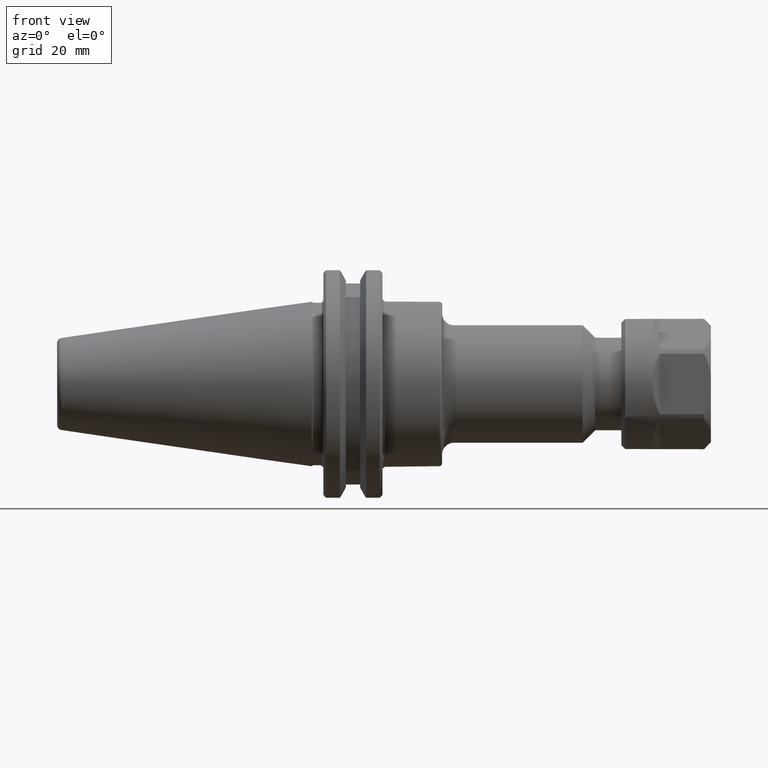
[diagram: clean part render]
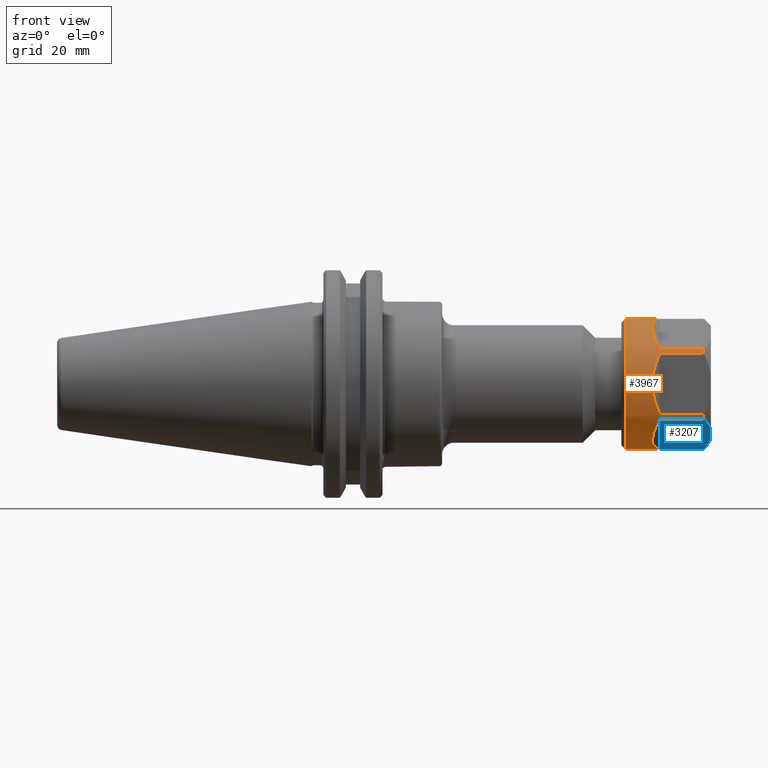
[diagram: same view with the hole feature highlighted: cylindrical wall and planar end face, labeled with their STEP entity ids]
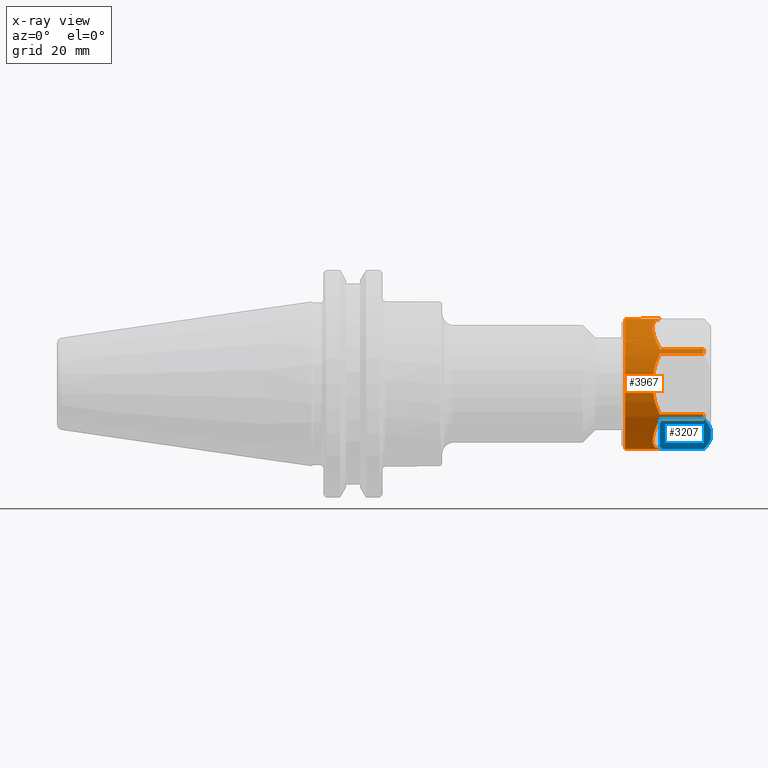
[diagram: x-ray of the same camera — body ghosted, the hole faces saturated]
A machine part, front view. The highlighted faces form one hole feature of diameter 35 mm: the cylindrical wall (entity #3967, orange) and its adjacent planar end face (entity #3207, blue) — they share a circular edge in the B-rep.
The next image is the same camera in x-ray (body ghosted, the hole faces saturated) — the bore reads through the body.
Wall:
#2981=CARTESIAN_POINT('',(13.67,17.485412960976781,0.714376360264837));
#2982=VERTEX_POINT('',#2981);
#2983=CARTESIAN_POINT('',(13.67,9.361374556340829,14.785623639735139));
#2984=VERTEX_POINT('',#2983);
#2985=CARTESIAN_POINT('',(-1.830000000000001,0.0,0.0));
#2986=DIRECTION('',(0.707106781186548,-0.612372435695795,-0.353553390593273));
#2987=DIRECTION('',(0.707106781186548,0.612372435695795,0.353553390593273));
#2988=AXIS2_PLACEMENT_3D('',#2985,#2986,#2987);
#2989=ELLIPSE('',#2988,24.748737341529164,17.500000000000004);
#2990=EDGE_CURVE('',#2982,#2984,#2989,.T.);
#3006=CARTESIAN_POINT('',(2.007106781186544,9.361374556340826,14.785623639735144));
#3007=VERTEX_POINT('',#3006);
#3008=CARTESIAN_POINT('',(13.67,9.361374556340834,14.785623639735135));
#3009=DIRECTION('',(-1.0,0.0,0.0));
#3010=VECTOR('',#3009,11.662893218813458);
#3011=LINE('',#3008,#3010);
#3012=EDGE_CURVE('',#2984,#3007,#3011,.T.);
#3015=CARTESIAN_POINT('',(2.007106781186544,17.485412960976781,0.714376360264832));
#3016=VERTEX_POINT('',#3015);
#3017=CARTESIAN_POINT('',(2.007106781186542,17.485412960976777,0.714376360264841));
#3018=DIRECTION('',(1.0,0.0,0.0));
#3019=VECTOR('',#3018,11.662893218813458);
#3020=LINE('',#3017,#3019);
#3021=EDGE_CURVE('',#3016,#2982,#3020,.T.);
#3097=CARTESIAN_POINT('',(13.67,9.36137455634081,-14.785623639735149));
#3098=VERTEX_POINT('',#3097);
#3099=CARTESIAN_POINT('',(13.67,17.485412960976777,-0.71437636026486));
#3100=VERTEX_POINT('',#3099);
#3101=CARTESIAN_POINT('',(-1.830000000000001,0.0,0.0));
#3102=DIRECTION('',(0.707106781186548,-0.612372435695794,0.353553390593274));
#3103=DIRECTION('',(0.707106781186547,0.612372435695794,-0.353553390593274));
#3104=AXIS2_PLACEMENT_3D('',#3101,#3102,#3103);
#3105=ELLIPSE('',#3104,24.748737341529161,17.500000000000004);
#3106=EDGE_CURVE('',#3098,#3100,#3105,.T.);
#3122=CARTESIAN_POINT('',(2.007106781186544,17.485412960976781,-0.714376360264856));
#3123=VERTEX_POINT('',#3122);
#3124=CARTESIAN_POINT('',(13.67,17.485412960976777,-0.714376360264857));
#3125=DIRECTION('',(-1.0,0.0,0.0));
#3126=VECTOR('',#3125,11.662893218813458);
#3127=LINE('',#3124,#3126);
#3128=EDGE_CURVE('',#3100,#3123,#3127,.T.);
#3131=CARTESIAN_POINT('',(2.007106781186544,9.361374556340806,-14.785623639735157));
#3132=VERTEX_POINT('',#3131);
#3133=CARTESIAN_POINT('',(2.007106781186542,9.361374556340806,-14.785623639735153));
#3134=DIRECTION('',(1.0,0.0,0.0));
#3135=VECTOR('',#3134,11.662893218813458);
#3136=LINE('',#3133,#3135);
#3137=EDGE_CURVE('',#3132,#3098,#3136,.T.);
#3213=CARTESIAN_POINT('',(13.67,-8.124038404635968,-15.499999999999998));
#3214=VERTEX_POINT('',#3213);
#3215=CARTESIAN_POINT('',(13.67,8.124038404635961,-15.5));
#3216=VERTEX_POINT('',#3215);
#3217=CARTESIAN_POINT('',(-1.830000000000001,0.0,0.0));
#3218=DIRECTION('',(0.707106781186547,5.551115E-017,0.707106781186548));
#3219=DIRECTION('',(-0.707106781186548,0.0,0.707106781186547));
#3220=AXIS2_PLACEMENT_3D('',#3217,#3218,#3219);
#3221=ELLIPSE('',#3220,24.748737341529164,17.5);
#3222=EDGE_CURVE('',#3214,#3216,#3221,.T.);
#3238=CARTESIAN_POINT('',(2.007106781186544,8.124038404635968,-15.5));
#3239=VERTEX_POINT('',#3238);
#3240=CARTESIAN_POINT('',(13.67,8.124038404635961,-15.5));
#3241=DIRECTION('',(-1.0,0.0,0.0));
#3242=VECTOR('',#3241,11.662893218813458);
#3243=LINE('',#3240,#3242);
#3244=EDGE_CURVE('',#3216,#3239,#3243,.T.);
#3247=CARTESIAN_POINT('',(2.007106781186544,-8.124038404635973,-15.499999999999998));
#3248=VERTEX_POINT('',#3247);
#3249=CARTESIAN_POINT('',(2.007106781186542,-8.124038404635966,-15.499999999999996));
#3250=DIRECTION('',(1.0,0.0,0.0));
#3251=VECTOR('',#3250,11.662893218813458);
#3252=LINE('',#3249,#3251);
#3253=EDGE_CURVE('',#3248,#3214,#3252,.T.);
#3329=CARTESIAN_POINT('',(13.67,-17.485412960976781,-0.714376360264848));
#3330=VERTEX_POINT('',#3329);
#3331=CARTESIAN_POINT('',(13.67,-9.36137455634082,-14.785623639735144));
#3332=VERTEX_POINT('',#3331);
#3333=CARTESIAN_POINT('',(-1.830000000000001,0.0,0.0));
#3334=DIRECTION('',(0.707106781186548,0.612372435695795,0.353553390593274));
#3335=DIRECTION('',(-0.707106781186548,0.612372435695795,0.353553390593274));
#3336=AXIS2_PLACEMENT_3D('',#3333,#3334,#3335);
#3337=ELLIPSE('',#3336,24.748737341529168,17.5);
#3338=EDGE_CURVE('',#3330,#3332,#3337,.T.);
#3354=CARTESIAN_POINT('',(2.007106781186544,-9.361374556340818,-14.785623639735148));
#3355=VERTEX_POINT('',#3354);
#3356=CARTESIAN_POINT('',(13.67,-9.361374556340824,-14.785623639735139));
#3357=DIRECTION('',(-1.0,0.0,0.0));
#3358=VECTOR('',#3357,11.662893218813458);
#3359=LINE('',#3356,#3358);
#3360=EDGE_CURVE('',#3332,#3355,#3359,.T.);
#3363=CARTESIAN_POINT('',(2.007106781186544,-17.485412960976781,-0.714376360264843));
#3364=VERTEX_POINT('',#3363);
#3365=CARTESIAN_POINT('',(2.007106781186542,-17.485412960976777,-0.714376360264852));
#3366=DIRECTION('',(1.0,0.0,0.0));
#3367=VECTOR('',#3366,11.662893218813458);
#3368=LINE('',#3365,#3367);
#3369=EDGE_CURVE('',#3364,#3330,#3368,.T.);
#3445=CARTESIAN_POINT('',(13.67,-9.361374556340813,14.785623639735148));
#3446=VERTEX_POINT('',#3445);
#3447=CARTESIAN_POINT('',(13.67,-17.485412960976781,0.714376360264855));
#3448=VERTEX_POINT('',#3447);
#3449=CARTESIAN_POINT('',(-1.830000000000001,0.0,0.0));
#3450=DIRECTION('',(0.707106781186547,0.612372435695794,-0.353553390593274));
#3451=DIRECTION('',(-0.707106781186547,0.612372435695794,-0.353553390593274));
#3452=AXIS2_PLACEMENT_3D('',#3449,#3450,#3451);
#3453=ELLIPSE('',#3452,24.748737341529161,17.5);
#3454=EDGE_CURVE('',#3446,#3448,#3453,.T.);
#3470=CARTESIAN_POINT('',(2.007106781186544,-17.485412960976781,0.71437636026485));
#3471=VERTEX_POINT('',#3470);
#3472=CARTESIAN_POINT('',(13.67,-17.485412960976781,0.714376360264853));
#3473=DIRECTION('',(-1.0,0.0,0.0));
#3474=VECTOR('',#3473,11.662893218813458);
#3475=LINE('',#3472,#3474);
#3476=EDGE_CURVE('',#3448,#3471,#3475,.T.);
#3479=CARTESIAN_POINT('',(2.007106781186544,-9.361374556340811,14.785623639735153));
#3480=VERTEX_POINT('',#3479);
#3481=CARTESIAN_POINT('',(2.007106781186542,-9.361374556340813,14.785623639735146));
#3482=DIRECTION('',(1.0,0.0,0.0));
#3483=VECTOR('',#3482,11.662893218813458);
#3484=LINE('',#3481,#3483);
#3485=EDGE_CURVE('',#3480,#3446,#3484,.T.);
#3742=CARTESIAN_POINT('',(2.007106781186544,-8.12403840463597,15.499999999999998));
#3743=VERTEX_POINT('',#3742);
#3744=CARTESIAN_POINT('',(2.007106781186544,0.0,0.0));
#3745=DIRECTION('',(1.0,0.0,0.0));
#3746=DIRECTION('',(0.0,1.0,0.0));
#3747=AXIS2_PLACEMENT_3D('',#3744,#3745,#3746);
#3748=CIRCLE('',#3747,17.500000000000004);
#3749=EDGE_CURVE('',#3743,#3480,#3748,.T.);
#3774=CARTESIAN_POINT('',(2.007106781186544,0.0,0.0));
#3775=DIRECTION('',(1.0,0.0,0.0));
#3776=DIRECTION('',(0.0,1.0,0.0));
#3777=AXIS2_PLACEMENT_3D('',#3774,#3775,#3776);
#3778=CIRCLE('',#3777,17.500000000000004);
#3779=EDGE_CURVE('',#3471,#3364,#3778,.T.);
#3792=CARTESIAN_POINT('',(2.007106781186544,0.0,0.0));
#3793=DIRECTION('',(1.0,0.0,0.0));
#3794=DIRECTION('',(0.0,1.0,0.0));
#3795=AXIS2_PLACEMENT_3D('',#3792,#3793,#3794);
#3796=CIRCLE('',#3795,17.500000000000004);
#3797=EDGE_CURVE('',#3355,#3248,#3796,.T.);
#3810=CARTESIAN_POINT('',(2.007106781186544,0.0,0.0));
#3811=DIRECTION('',(1.0,0.0,0.0));
#3812=DIRECTION('',(0.0,1.0,0.0));
#3813=AXIS2_PLACEMENT_3D('',#3810,#3811,#3812);
#3814=CIRCLE('',#3813,17.500000000000004);
#3815=EDGE_CURVE('',#3239,#3132,#3814,.T.);
#3828=CARTESIAN_POINT('',(2.007106781186544,0.0,0.0));
#3829=DIRECTION('',(1.0,0.0,0.0));
#3830=DIRECTION('',(0.0,1.0,0.0));
#3831=AXIS2_PLACEMENT_3D('',#3828,#3829,#3830);
#3832=CIRCLE('',#3831,17.500000000000004);
#3833=EDGE_CURVE('',#3123,#3016,#3832,.T.);
#3845=CARTESIAN_POINT('',(13.67,8.124038404635964,15.499999999999998));
#3846=VERTEX_POINT('',#3845);
#3847=CARTESIAN_POINT('',(13.67,-8.124038404635964,15.499999999999998));
#3848=VERTEX_POINT('',#3847);
#3849=CARTESIAN_POINT('',(-1.830000000000001,0.0,0.0));
#3850=DIRECTION('',(0.707106781186548,0.0,-0.707106781186547));
#3851=DIRECTION('',(0.707106781186547,0.0,0.707106781186548));
#3852=AXIS2_PLACEMENT_3D('',#3849,#3850,#3851);
#3853=ELLIPSE('',#3852,24.748737341529161,17.5);
#3854=EDGE_CURVE('',#3846,#3848,#3853,.T.);
#3870=CARTESIAN_POINT('',(13.67,-8.124038404635964,15.499999999999998));
#3871=DIRECTION('',(-1.0,0.0,0.0));
#3872=VECTOR('',#3871,11.662893218813458);
#3873=LINE('',#3870,#3872);
#3874=EDGE_CURVE('',#3848,#3743,#3873,.T.);
#3877=CARTESIAN_POINT('',(2.007106781186544,8.12403840463597,15.499999999999998));
#3878=VERTEX_POINT('',#3877);
#3879=CARTESIAN_POINT('',(2.007106781186542,8.124038404635964,15.499999999999998));
#3880=DIRECTION('',(1.0,0.0,0.0));
#3881=VECTOR('',#3880,11.662893218813458);
#3882=LINE('',#3879,#3881);
#3883=EDGE_CURVE('',#3878,#3846,#3882,.T.);
#3919=CARTESIAN_POINT('',(12.503553390593273,0.0,0.0));
#3920=DIRECTION('',(1.0,0.0,0.0));
#3921=DIRECTION('',(0.0,1.0,0.0));
#3922=AXIS2_PLACEMENT_3D('',#3919,#3920,#3921);
#3923=CYLINDRICAL_SURFACE('',#3922,17.5);
#3924=ORIENTED_EDGE('',*,*,#3012,.T.);
#3925=CARTESIAN_POINT('',(2.007106781186544,0.0,0.0));
#3926=DIRECTION('',(1.0,0.0,0.0));
#3927=DIRECTION('',(0.0,1.0,0.0));
#3928=AXIS2_PLACEMENT_3D('',#3925,#3926,#3927);
#3929=CIRCLE('',#3928,17.500000000000004);
#3930=EDGE_CURVE('',#3007,#3878,#3929,.T.);
#3931=ORIENTED_EDGE('',*,*,#3930,.T.);
#3932=ORIENTED_EDGE('',*,*,#3883,.T.);
#3933=ORIENTED_EDGE('',*,*,#3854,.T.);
#3934=ORIENTED_EDGE('',*,*,#3874,.T.);
#3935=ORIENTED_EDGE('',*,*,#3749,.T.);
#3936=ORIENTED_EDGE('',*,*,#3485,.T.);
#3937=ORIENTED_EDGE('',*,*,#3454,.T.);
#3938=ORIENTED_EDGE('',*,*,#3476,.T.);
#3939=ORIENTED_EDGE('',*,*,#3779,.T.);
#3940=ORIENTED_EDGE('',*,*,#3369,.T.);
#3941=ORIENTED_EDGE('',*,*,#3338,.T.);
#3942=ORIENTED_EDGE('',*,*,#3360,.T.);
#3943=ORIENTED_EDGE('',*,*,#3797,.T.);
#3944=ORIENTED_EDGE('',*,*,#3253,.T.);
#3945=ORIENTED_EDGE('',*,*,#3222,.T.);
#3946=ORIENTED_EDGE('',*,*,#3244,.T.);
#3947=ORIENTED_EDGE('',*,*,#3815,.T.);
#3948=ORIENTED_EDGE('',*,*,#3137,.T.);
#3949=ORIENTED_EDGE('',*,*,#3106,.T.);
#3950=ORIENTED_EDGE('',*,*,#3128,.T.);
#3951=ORIENTED_EDGE('',*,*,#3833,.T.);
#3952=ORIENTED_EDGE('',*,*,#3021,.T.);
#3953=ORIENTED_EDGE('',*,*,#2990,.T.);
#3954=EDGE_LOOP('',(#3924,#3931,#3932,#3933,#3934,#3935,#3936,#3937,#3938,#3939,#3940,#3941,#3942,#3943,#3944,#3945,#3946,#3947,#3948,#3949,#3950,#3951,#3952,#3953));
#3955=FACE_OUTER_BOUND('',#3954,.T.);
#3956=CARTESIAN_POINT('',(23.000000000000004,17.5,0.0));
#3957=VERTEX_POINT('',#3956);
#3958=CARTESIAN_POINT('',(23.000000000000004,0.0,0.0));
#3959=DIRECTION('',(1.0,0.0,0.0));
#3960=DIRECTION('',(0.0,1.0,0.0));
#3961=AXIS2_PLACEMENT_3D('',#3958,#3959,#3960);
#3962=CIRCLE('',#3961,17.5);
#3963=EDGE_CURVE('',#3957,#3957,#3962,.T.);
#3964=ORIENTED_EDGE('',*,*,#3963,.F.);
#3965=EDGE_LOOP('',(#3964));
#3966=FACE_BOUND('',#3965,.T.);
#3967=ADVANCED_FACE('',(#3955,#3966),#3923,.T.);
End face:
#3097=CARTESIAN_POINT('',(13.67,9.36137455634081,-14.785623639735149));
#3098=VERTEX_POINT('',#3097);
#3099=CARTESIAN_POINT('',(13.67,17.485412960976777,-0.71437636026486));
#3100=VERTEX_POINT('',#3099);
#3108=CARTESIAN_POINT('',(13.67,9.36137455634081,-14.785623639735151));
#3109=DIRECTION('',(0.0,0.5,0.866025403784438));
#3110=VECTOR('',#3109,16.248076809271929);
#3111=LINE('',#3108,#3110);
#3112=EDGE_CURVE('',#3098,#3100,#3111,.T.);
#3117=CARTESIAN_POINT('',(0.0,13.423393758658795,-7.750000000000007));
#3118=DIRECTION('',(0.0,-0.866025403784438,0.5));
#3119=DIRECTION('',(-1.0,0.0,0.0));
#3120=AXIS2_PLACEMENT_3D('',#3117,#3118,#3119);
#3121=PLANE('',#3120);
#3122=CARTESIAN_POINT('',(2.007106781186544,17.485412960976781,-0.714376360264856));
#3123=VERTEX_POINT('',#3122);
#3124=CARTESIAN_POINT('',(13.67,17.485412960976777,-0.714376360264857));
#3125=DIRECTION('',(-1.0,0.0,0.0));
#3126=VECTOR('',#3125,11.662893218813458);
#3127=LINE('',#3124,#3126);
#3128=EDGE_CURVE('',#3100,#3123,#3127,.T.);
#3129=ORIENTED_EDGE('',*,*,#3128,.F.);
#3130=ORIENTED_EDGE('',*,*,#3112,.F.);
#3131=CARTESIAN_POINT('',(2.007106781186544,9.361374556340806,-14.785623639735157));
#3132=VERTEX_POINT('',#3131);
#3133=CARTESIAN_POINT('',(2.007106781186542,9.361374556340806,-14.785623639735153));
#3134=DIRECTION('',(1.0,0.0,0.0));
#3135=VECTOR('',#3134,11.662893218813458);
#3136=LINE('',#3133,#3135);
#3137=EDGE_CURVE('',#3132,#3098,#3136,.T.);
#3138=ORIENTED_EDGE('',*,*,#3137,.F.);
#3139=CARTESIAN_POINT('',(1.65355339059327,9.521605217484009,-14.508095993704778));
#3140=VERTEX_POINT('',#3139);
#3141=CARTESIAN_POINT('',(1.65355339059327,9.521605217484009,-14.508095993704778));
#3142=CARTESIAN_POINT('',(1.671191505765734,9.501993443926528,-14.54206458193287));
#3143=CARTESIAN_POINT('',(1.690809506569942,9.483299748717721,-14.574443011815728));
#3144=CARTESIAN_POINT('',(1.749970785829544,9.435683946194725,-14.656916001028719));
#3145=CARTESIAN_POINT('',(1.805686069970949,9.402373173896972,-14.714611951087784));
#3146=CARTESIAN_POINT('',(1.887815344434457,9.376415389924089,-14.759572151780716));
#3147=CARTESIAN_POINT('',(1.914681847284033,9.370031443097224,-14.770629472037665));
#3148=CARTESIAN_POINT('',(1.959357004343837,9.363352654234962,-14.782197473680128));
#3149=CARTESIAN_POINT('',(1.985265833157077,9.361374556340811,-14.785623639735148));
#3150=CARTESIAN_POINT('',(2.007106781186544,9.361374556340811,-14.785623639735148));
#3151=B_SPLINE_CURVE_WITH_KNOTS('',3,(#3141,#3142,#3143,#3144,#3145,#3146,#3147,#3148,#3149,#3150),.UNSPECIFIED.,.F.,.U.,(4,2,2,2,4),(-0.047622419496248,-0.035700868469014,-0.013988799401258,-0.00655228440884,0.0),.UNSPECIFIED.);
#3152=EDGE_CURVE('',#3140,#3132,#3151,.T.);
#3153=ORIENTED_EDGE('',*,*,#3152,.F.);
#3154=CARTESIAN_POINT('',(-5.551115E-016,12.174394158979121,-9.91333076527839));
#3155=VERTEX_POINT('',#3154);
#3156=CARTESIAN_POINT('',(-1.249001E-015,12.174394158979119,-9.913330765278388));
#3157=CARTESIAN_POINT('',(0.400965340919138,10.914354553272878,-12.095783381910646));
#3158=CARTESIAN_POINT('',(1.65355339059327,9.521605217484009,-14.508095993704774));
#3166=(BOUNDED_CURVE()B_SPLINE_CURVE(2,(#3156,#3157,#3158),.UNSPECIFIED.,.F.,.U.)B_SPLINE_CURVE_WITH_KNOTS((3,3),(0.0,0.556957475498898),.UNSPECIFIED.)CURVE()GEOMETRIC_REPRESENTATION_ITEM()RATIONAL_B_SPLINE_CURVE((1.0,1.013136873533333,1.0))REPRESENTATION_ITEM(''));
#3167=EDGE_CURVE('',#3155,#3140,#3166,.T.);
#3168=ORIENTED_EDGE('',*,*,#3167,.F.);
#3169=CARTESIAN_POINT('',(-5.551115E-016,14.672393358338468,-5.586669234721624));
#3170=VERTEX_POINT('',#3169);
#3171=CARTESIAN_POINT('',(0.0,14.672393358338468,-5.586669234721625));
#3172=DIRECTION('',(0.0,-0.5,-0.866025403784438));
#3173=VECTOR('',#3172,4.995998398718693);
#3174=LINE('',#3171,#3173);
#3175=EDGE_CURVE('',#3170,#3155,#3174,.T.);
#3176=ORIENTED_EDGE('',*,*,#3175,.F.);
#3177=CARTESIAN_POINT('',(1.65355339059327,17.325182299833578,-0.991904006295234));
#3178=VERTEX_POINT('',#3177);
#3179=CARTESIAN_POINT('',(1.653553390593269,17.325182299833578,-0.99190400629524));
#3180=CARTESIAN_POINT('',(0.400965340919135,15.932432964044702,-3.404216618089374));
#3181=CARTESIAN_POINT('',(-2.220446E-015,14.67239335833847,-5.586669234721624));
#3189=(BOUNDED_CURVE()B_SPLINE_CURVE(2,(#3179,#3180,#3181),.UNSPECIFIED.,.F.,.U.)B_SPLINE_CURVE_WITH_KNOTS((3,3),(0.0,0.556957475498898),.UNSPECIFIED.)CURVE()GEOMETRIC_REPRESENTATION_ITEM()RATIONAL_B_SPLINE_CURVE((1.0,1.013136873533358,1.0))REPRESENTATION_ITEM(''));
#3190=EDGE_CURVE('',#3178,#3170,#3189,.T.);
#3191=ORIENTED_EDGE('',*,*,#3190,.F.);
#3192=CARTESIAN_POINT('',(2.007106781186544,17.485412960976777,-0.714376360264867));
#3193=CARTESIAN_POINT('',(1.985265833157077,17.485412960976777,-0.714376360264867));
#3194=CARTESIAN_POINT('',(1.959357004343837,17.483434863082621,-0.717802526319881));
#3195=CARTESIAN_POINT('',(1.914681847284033,17.476756074220361,-0.729370527962343));
#3196=CARTESIAN_POINT('',(1.887815344434457,17.470372127393496,-0.740427848219293));
#3197=CARTESIAN_POINT('',(1.805686069970949,17.444414343420615,-0.785388048912224));
#3198=CARTESIAN_POINT('',(1.749970785829544,17.411103571122858,-0.843083998971289));
#3199=CARTESIAN_POINT('',(1.690809506569942,17.363487768599867,-0.925556988184282));
#3200=CARTESIAN_POINT('',(1.671191505765736,17.344794073391064,-0.957935418067141));
#3201=CARTESIAN_POINT('',(1.653553390593272,17.325182299833582,-0.991904006295236));
#3202=B_SPLINE_CURVE_WITH_KNOTS('',3,(#3192,#3193,#3194,#3195,#3196,#3197,#3198,#3199,#3200,#3201),.UNSPECIFIED.,.F.,.U.,(4,2,2,2,4),(0.0,0.00655228440884,0.013988799401258,0.035700868469014,0.047622419496248),.UNSPECIFIED.);
#3203=EDGE_CURVE('',#3123,#3178,#3202,.T.);
#3204=ORIENTED_EDGE('',*,*,#3203,.F.);
#3205=EDGE_LOOP('',(#3129,#3130,#3138,#3153,#3168,#3176,#3191,#3204));
#3206=FACE_OUTER_BOUND('',#3205,.T.);
#3207=ADVANCED_FACE('',(#3206),#3121,.F.);